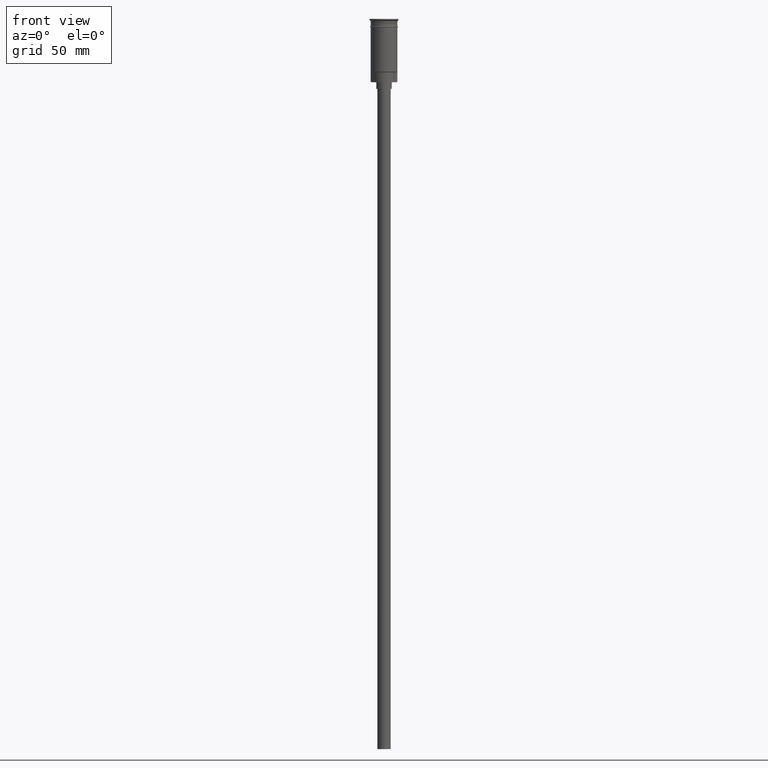
[diagram: clean part render]
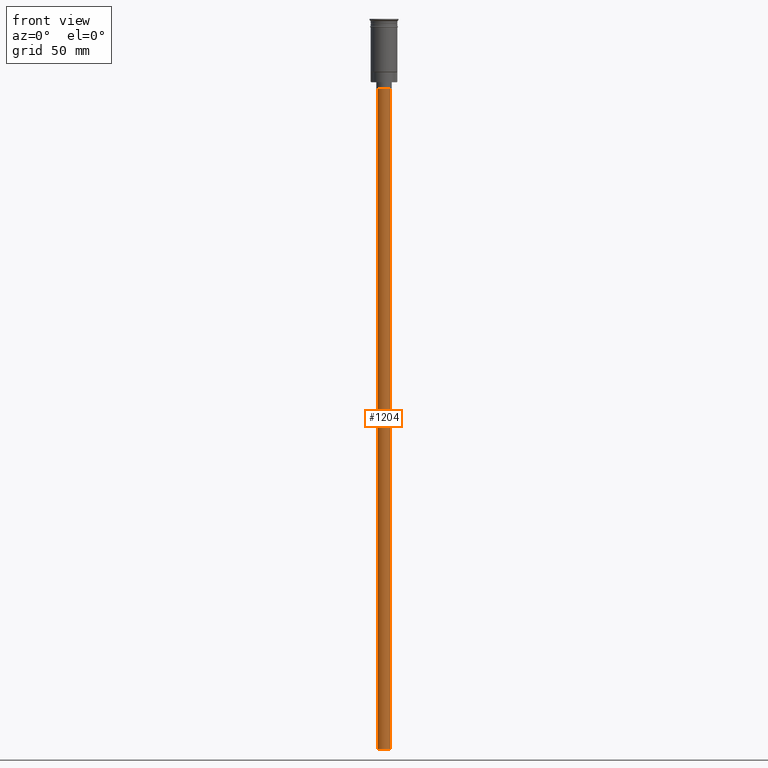
[diagram: same view with one face highlighted and labeled with its STEP entity id]
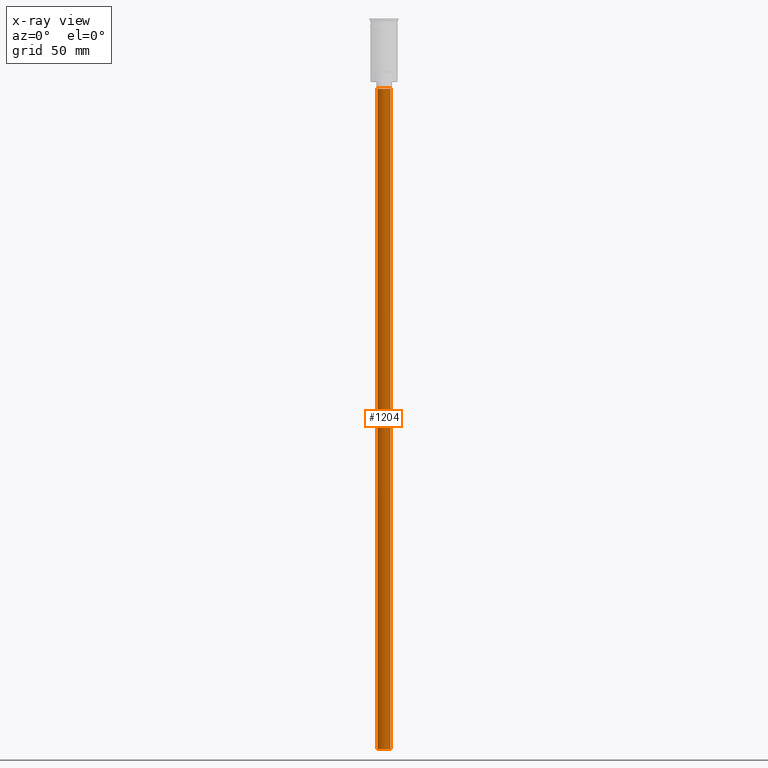
[diagram: x-ray of the same camera — body ghosted, the highlighted face saturated]
A machine part, front view. The second image highlights one B-rep face of the part: STEP entity #1204.
The next image is the same camera in x-ray: the body ghosted, the highlighted face saturated — about 0% of this face is hidden behind the body in this view.
In plain terms, the highlighted cylindrical surface (edge-blend (fillet) strip) has radius 3 mm, axis along (-0, -0, 1).
Its self-contained STEP definition (entity closure, byte-faithful):
#11 = AXIS2_PLACEMENT_3D ( 'NONE', #1103, #1232, #1500 ) ;
#119 = ORIENTED_EDGE ( 'NONE', *, *, #232, .T. ) ;
#145 = EDGE_CURVE ( 'NONE', #700, #1403, #277, .T. ) ;
#232 = EDGE_CURVE ( 'NONE', #1259, #1482, #865, .T. ) ;
#243 = AXIS2_PLACEMENT_3D ( 'NONE', #1188, #1573, #715 ) ;
#277 = LINE ( 'NONE', #1138, #987 ) ;
#369 = ORIENTED_EDGE ( 'NONE', *, *, #631, .T. ) ;
#519 = CARTESIAN_POINT ( 'NONE',  ( 0.000000000000000000, 0.000000000000000000, -31.50000000000000000 ) ) ;
#541 = DIRECTION ( 'NONE',  ( -0.000000000000000000, -0.000000000000000000, 1.000000000000000000 ) ) ;
#545 = DIRECTION ( 'NONE',  ( 0.000000000000000000, 0.000000000000000000, -1.000000000000000000 ) ) ;
#565 = CARTESIAN_POINT ( 'NONE',  ( -3.000000000000000444, 3.673940397442060361E-16, -328.5000000000000000 ) ) ;
#587 = FACE_OUTER_BOUND ( 'NONE', #710, .T. ) ;
#631 = EDGE_CURVE ( 'NONE', #1482, #1403, #1518, .T. ) ;
#699 = CARTESIAN_POINT ( 'NONE',  ( 3.000000000000000444, 0.000000000000000000, -328.5000000000000000 ) ) ;
#700 = VERTEX_POINT ( 'NONE', #565 ) ;
#710 = EDGE_LOOP ( 'NONE', ( #1370, #1302, #119, #369 ) ) ;
#715 = DIRECTION ( 'NONE',  ( 1.000000000000000000, 0.000000000000000000, 0.000000000000000000 ) ) ;
#778 = DIRECTION ( 'NONE',  ( -1.000000000000000000, 0.000000000000000000, 0.000000000000000000 ) ) ;
#865 = LINE ( 'NONE', #897, #1589 ) ;
#897 = CARTESIAN_POINT ( 'NONE',  ( 3.000000000000000444, 0.000000000000000000, -328.5000000000000000 ) ) ;
#909 = EDGE_CURVE ( 'NONE', #1259, #700, #1357, .T. ) ;
#987 = VECTOR ( 'NONE', #1130, 1000.000000000000000 ) ;
#1103 = CARTESIAN_POINT ( 'NONE',  ( 0.000000000000000000, 0.000000000000000000, -328.5000000000000000 ) ) ;
#1130 = DIRECTION ( 'NONE',  ( -0.000000000000000000, -0.000000000000000000, 1.000000000000000000 ) ) ;
#1138 = CARTESIAN_POINT ( 'NONE',  ( -3.000000000000000444, 3.673940397442060361E-16, -328.5000000000000000 ) ) ;
#1188 = CARTESIAN_POINT ( 'NONE',  ( 0.000000000000000000, 0.000000000000000000, -328.5000000000000000 ) ) ;
#1204 = ADVANCED_FACE ( 'NONE', ( #587 ), #1291, .T. ) ;
#1232 = DIRECTION ( 'NONE',  ( 0.000000000000000000, 0.000000000000000000, -1.000000000000000000 ) ) ;
#1253 = CARTESIAN_POINT ( 'NONE',  ( -3.000000000000000444, 3.673940397442060361E-16, -31.50000000000000000 ) ) ;
#1259 = VERTEX_POINT ( 'NONE', #699 ) ;
#1291 = CYLINDRICAL_SURFACE ( 'NONE', #243, 3.000000000000000444 ) ;
#1302 = ORIENTED_EDGE ( 'NONE', *, *, #909, .F. ) ;
#1357 = CIRCLE ( 'NONE', #11, 3.000000000000000444 ) ;
#1370 = ORIENTED_EDGE ( 'NONE', *, *, #145, .F. ) ;
#1403 = VERTEX_POINT ( 'NONE', #1253 ) ;
#1482 = VERTEX_POINT ( 'NONE', #1534 ) ;
#1500 = DIRECTION ( 'NONE',  ( -1.000000000000000000, 0.000000000000000000, 0.000000000000000000 ) ) ;
#1518 = CIRCLE ( 'NONE', #1591, 3.000000000000000444 ) ;
#1534 = CARTESIAN_POINT ( 'NONE',  ( 3.000000000000000444, 0.000000000000000000, -31.50000000000000000 ) ) ;
#1573 = DIRECTION ( 'NONE',  ( -0.000000000000000000, -0.000000000000000000, 1.000000000000000000 ) ) ;
#1589 = VECTOR ( 'NONE', #541, 1000.000000000000000 ) ;
#1591 = AXIS2_PLACEMENT_3D ( 'NONE', #519, #545, #778 ) ;